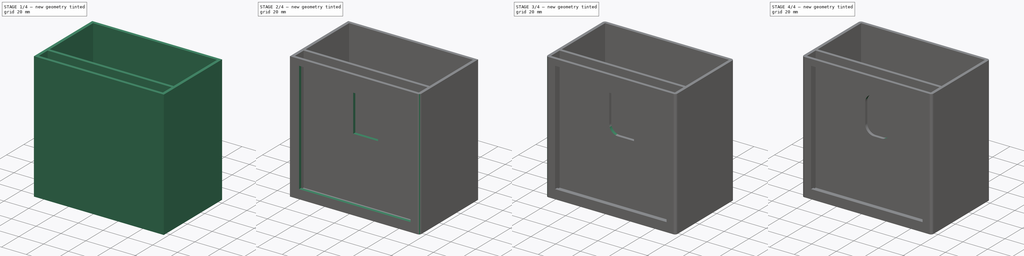
[diagram: build sequence overview — one tinted view per stage of 4, left to right]
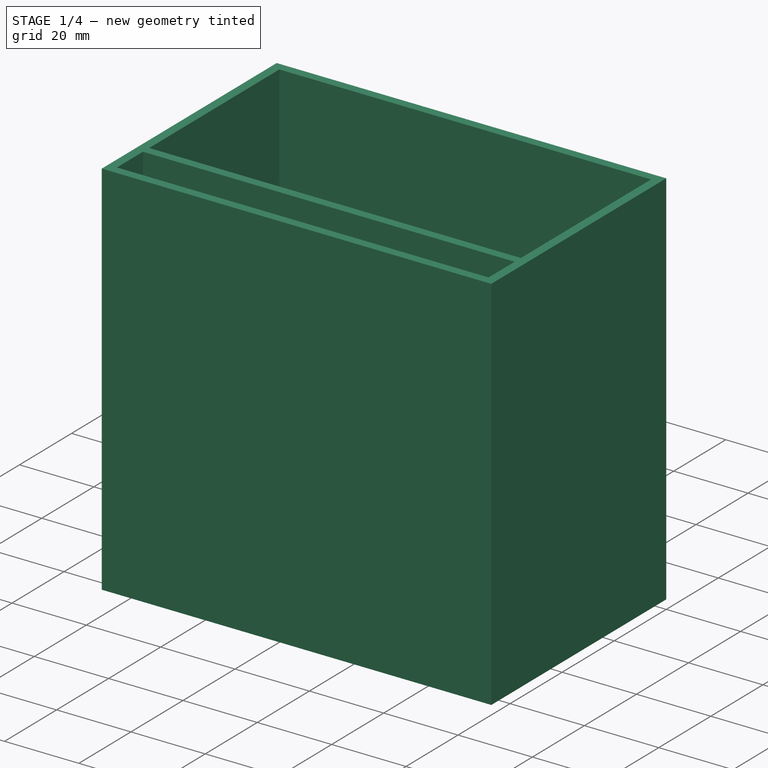
[diagram: stage 1 of 4 — iso view after this stage's code; geometry added in this stage tinted green]
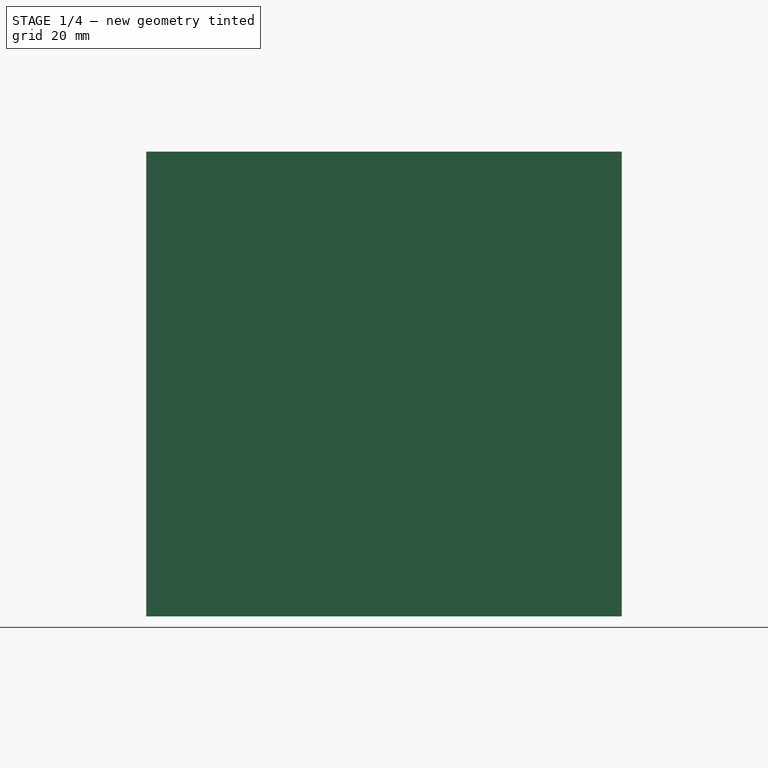
[diagram: stage 1 of 4 — front view after this stage's code; geometry added in this stage tinted green]
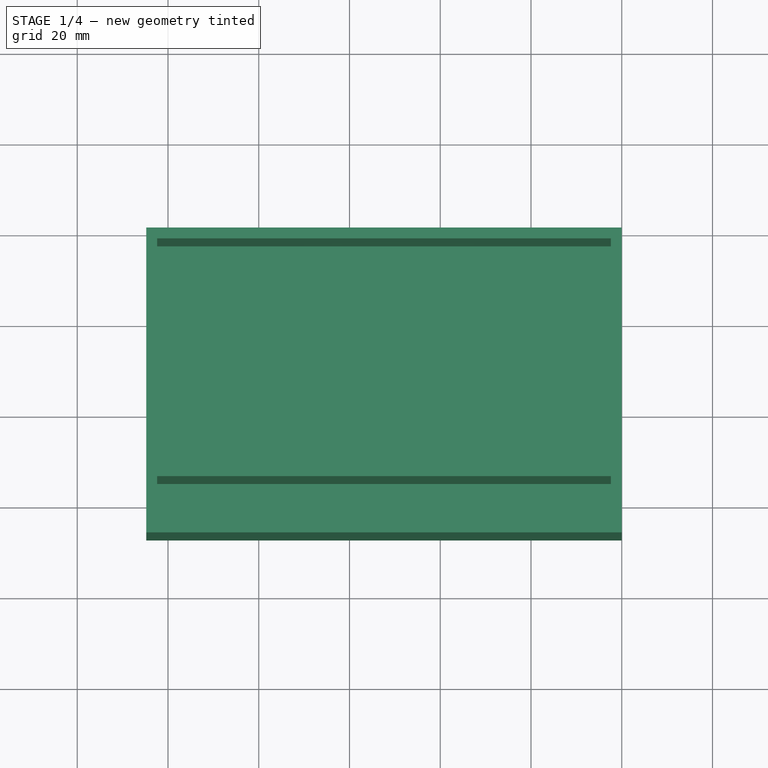
[diagram: stage 1 of 4 — top view after this stage's code; geometry added in this stage tinted green]
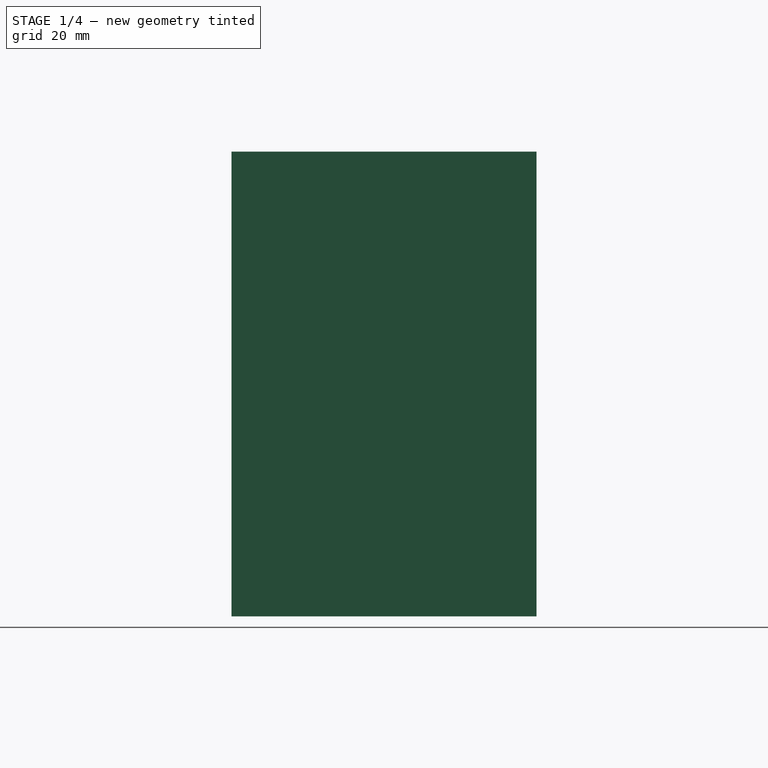
[diagram: stage 1 of 4 — right view after this stage's code; geometry added in this stage tinted green]
FCSTD DOCUMENT  (FreeCAD 0.19R24276 (Git))
Label: PhotoPencilCase
License: All rights reserved
LicenseURL: http://en.wikipedia.org/wiki/All_rights_reserved
objects: PartDesign::Fillet×8, Sketcher::SketchObject×5, PartDesign::Pocket×4, PartDesign::Pad×1, PartDesign::Body×1
note: 32 computed .brp shape members not serialized (recipe doc carries the construction recipe); baked Part::Feature solids carry a one-line shape summary decoded from their .brp

FEATURE [Sketcher::SketchObject] Sketch
  FullyConstrained = true
  MapMode = 5
  Placement = pos=(0,0,0) rot=(1,0,0;1.5708rad)
  Support = -> [XZ_Plane]
  sketch-geometry (4):
    g0: LineSegment StartX=-104.8 StartY=102.4 StartZ=0 EndX=0 EndY=102.4 EndZ=0
    g1: LineSegment StartX=0 StartY=102.4 StartZ=0 EndX=0 EndY=0 EndZ=0
    g2: LineSegment StartX=0 StartY=0 StartZ=0 EndX=-104.8 EndY=0 EndZ=0
    g3: LineSegment StartX=-104.8 StartY=0 StartZ=0 EndX=-104.8 EndY=102.4 EndZ=0
  constraints (11):
    c: Horizontal(g0)
    c: Coincident(g1,g0)
    c: Vertical(g1)
    c: Coincident(g2,g1)
    c: Horizontal(g2)
    c: Coincident(g3,g2)
    c: Coincident(g3,g0)
    c: Vertical(g3)
    c: Distance(g3) = 102.4
    c: Distance(g2) = 104.8
    c: Coincident(g1,g-1)
FEATURE [PartDesign::Pad] Pad
  Direction = (1,1,1)
  Length = 67.2
  Length2 = 100
  Placement = pos=(0,0,0) rot=(1,0,0;1.5708rad)
  Profile = -> Sketch
  Type = 0
FEATURE [Sketcher::SketchObject] Sketch001
  FullyConstrained = true
  MapMode = 5
  Placement = pos=(0,6.82e-14,102.4) rot=(0,0,1;3.14159rad)
  Support = -> [Pad]
  sketch-geometry (4):
    g0: LineSegment StartX=2.4 StartY=2.4 StartZ=0 EndX=102.4 EndY=2.4 EndZ=0
    g1: LineSegment StartX=102.4 StartY=2.4 StartZ=0 EndX=102.4 EndY=52.4 EndZ=0
    g2: LineSegment StartX=102.4 StartY=52.4 StartZ=0 EndX=2.4 EndY=52.4 EndZ=0
    g3: LineSegment StartX=2.4 StartY=52.4 StartZ=0 EndX=2.4 EndY=2.4 EndZ=0
  constraints (12):
    c: Coincident(g0,g1)
    c: Coincident(g1,g2)
    c: Coincident(g2,g3)
    c: Coincident(g3,g0)
    c: Horizontal(g0)
    c: Horizontal(g2)
    c: Vertical(g1)
    c: Vertical(g3)
    c: Distance(g1) = 50
    c: Distance(g2) = 100
    c: DistanceY(g-1,g0) = 2.4
    c: DistanceX(g-1,g0) = 2.4
FEATURE [PartDesign::Pocket] Pocket
  BaseFeature = -> Pad
  Length = 100
  Length2 = 100
  Placement = pos=(0,0,0) rot=(1,0,0;1.5708rad)
  Profile = -> Sketch001
  Type = 0
FEATURE [Sketcher::SketchObject] Sketch002
  FullyConstrained = true
  MapMode = 5
  Placement = pos=(0,1.137e-13,102.4) rot=(0,0,1;3.14159rad)
  Support = -> [Pocket]
  sketch-geometry (4):
    g0: LineSegment StartX=2.4 StartY=64.8 StartZ=0 EndX=102.4 EndY=64.8 EndZ=0
    g1: LineSegment StartX=102.4 StartY=64.8 StartZ=0 EndX=102.4 EndY=54.8 EndZ=0
    g2: LineSegment StartX=102.4 StartY=54.8 StartZ=0 EndX=2.4 EndY=54.8 EndZ=0
    g3: LineSegment StartX=2.4 StartY=54.8 StartZ=0 EndX=2.4 EndY=64.8 EndZ=0
  constraints (12):
    c: Coincident(g0,g1)
    c: Coincident(g1,g2)
    c: Coincident(g2,g3)
    c: Coincident(g3,g0)
    c: Horizontal(g0)
    c: Horizontal(g2)
    c: Vertical(g1)
    c: Vertical(g3)
    c: Distance(g2) = 100
    c: Distance(g3) = 10
    c: DistanceX(g-1,g2) = 2.4
    c: DistanceY(g-1,g2) = 54.8
FEATURE [PartDesign::Pocket] Pocket001
  BaseFeature = -> Pocket
  Length = 100
  Length2 = 100
  Placement = pos=(0,0,0) rot=(1,0,0;1.5708rad)
  Profile = -> Sketch002
  Type = 0
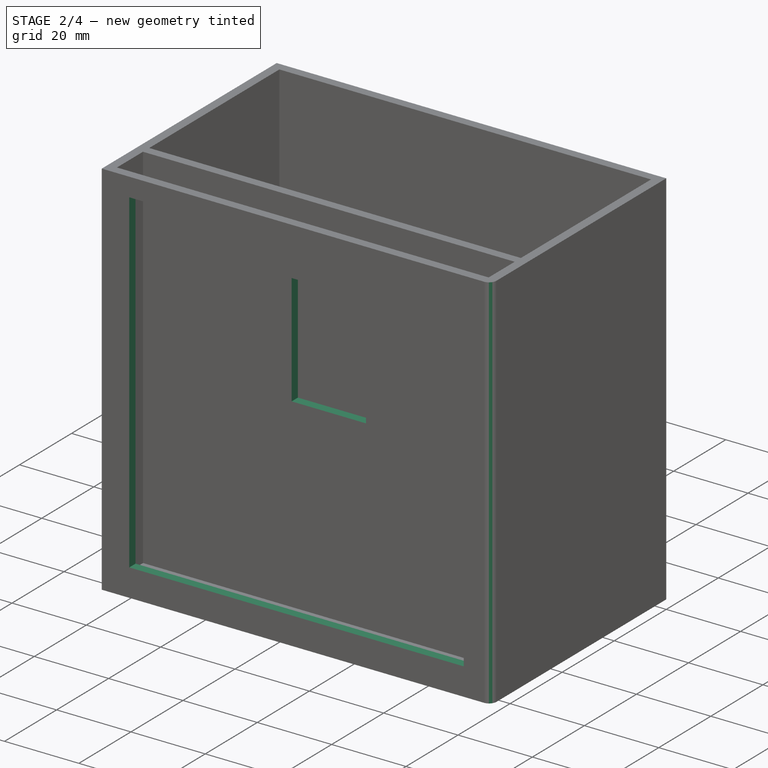
[diagram: stage 2 of 4 — iso view after this stage's code; geometry added in this stage tinted green]
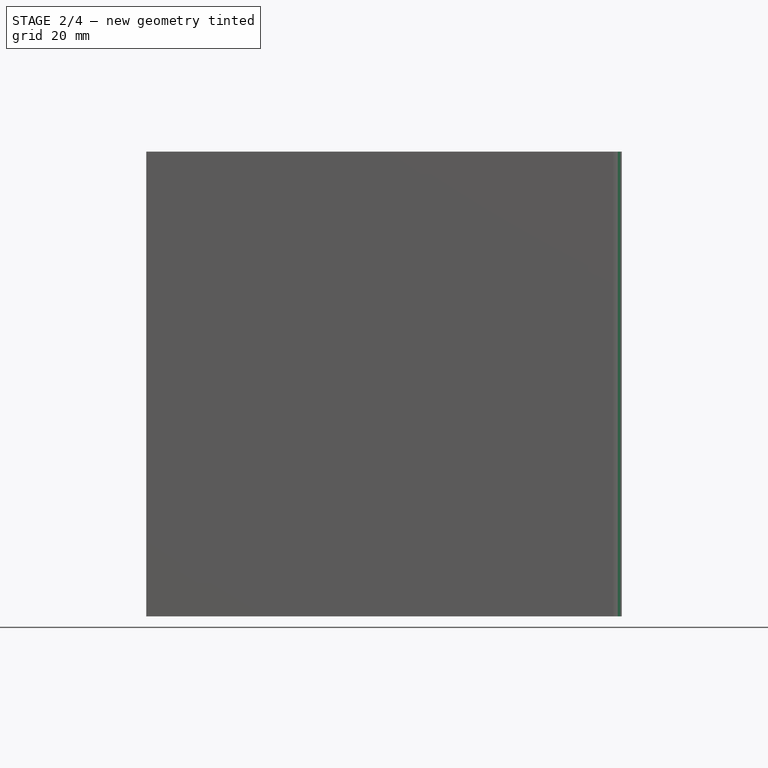
[diagram: stage 2 of 4 — front view after this stage's code; geometry added in this stage tinted green]
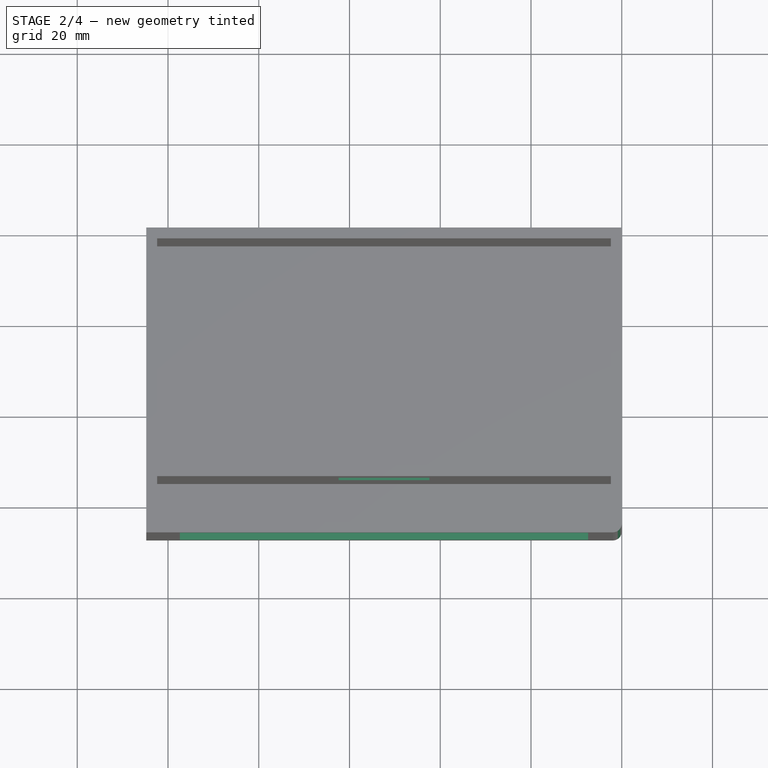
[diagram: stage 2 of 4 — top view after this stage's code; geometry added in this stage tinted green]
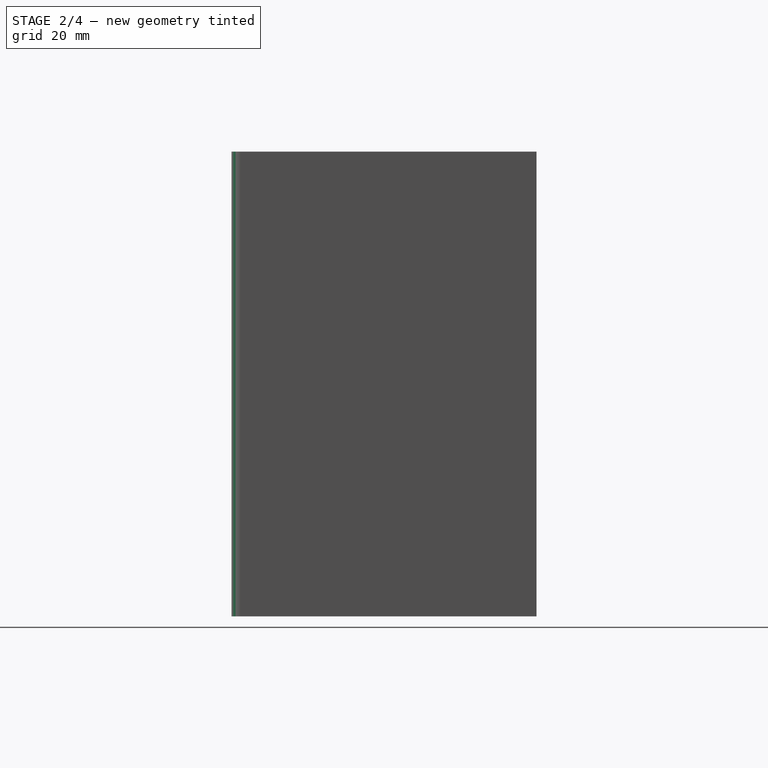
[diagram: stage 2 of 4 — right view after this stage's code; geometry added in this stage tinted green]
FEATURE [Sketcher::SketchObject] Sketch003
  FullyConstrained = true
  MapMode = 5
  Placement = pos=(0,-67.2,1.044e-13) rot=(1,0,0;1.5708rad)
  Support = -> [Pocket001]
  sketch-geometry (4):
    g0: LineSegment StartX=-97.4 StartY=97.4 StartZ=0 EndX=-7.4 EndY=97.4 EndZ=0
    g1: LineSegment StartX=-7.4 StartY=97.4 StartZ=0 EndX=-7.4 EndY=7.4 EndZ=0
    g2: LineSegment StartX=-7.4 StartY=7.4 StartZ=0 EndX=-97.4 EndY=7.4 EndZ=0
    g3: LineSegment StartX=-97.4 StartY=7.4 StartZ=0 EndX=-97.4 EndY=97.4 EndZ=0
  constraints (12):
    c: Coincident(g0,g1)
    c: Coincident(g1,g2)
    c: Coincident(g2,g3)
    c: Coincident(g3,g0)
    c: Horizontal(g0)
    c: Horizontal(g2)
    c: Vertical(g1)
    c: Vertical(g3)
    c: Distance(g0) = 90
    c: Distance(g1) = 90
    c: DistanceX(g1,g-1) = 7.4
    c: DistanceY(g-1,g1) = 7.4
FEATURE [PartDesign::Pocket] Pocket002
  BaseFeature = -> Pocket001
  Length = 3
  Length2 = 100
  Placement = pos=(0,0,0) rot=(1,0,0;1.5708rad)
  Profile = -> Sketch003
  Type = 0
FEATURE [Sketcher::SketchObject] Sketch004
  FullyConstrained = true
  MapMode = 5
  Placement = pos=(0,-54.8,1.095e-13) rot=(1,0,0;1.5708rad)
  Support = -> [Pocket002]
  sketch-geometry (4):
    g0: LineSegment StartX=-62.4 StartY=82.4 StartZ=0 EndX=-42.4 EndY=82.4 EndZ=0
    g1: LineSegment StartX=-42.4 StartY=82.4 StartZ=0 EndX=-42.4 EndY=52.4 EndZ=0
    g2: LineSegment StartX=-42.4 StartY=52.4 StartZ=0 EndX=-62.4 EndY=52.4 EndZ=0
    g3: LineSegment StartX=-62.4 StartY=52.4 StartZ=0 EndX=-62.4 EndY=82.4 EndZ=0
  constraints (12):
    c: Coincident(g0,g1)
    c: Coincident(g1,g2)
    c: Coincident(g2,g3)
    c: Coincident(g3,g0)
    c: Horizontal(g0)
    c: Horizontal(g2)
    c: Vertical(g1)
    c: Vertical(g3)
    c: Distance(g0) = 20
    c: Distance(g1) = 30
    c: DistanceX(g1,g-1) = 42.4
    c: DistanceY(g-1,g1) = 52.4
FEATURE [PartDesign::Pocket] Pocket003
  BaseFeature = -> Pocket002
  Length = 5
  Length2 = 100
  Placement = pos=(0,0,0) rot=(1,0,0;1.5708rad)
  Profile = -> Sketch004
  Type = 0
FEATURE [PartDesign::Fillet] Fillet
  Base = -> Pocket003 [Edge18]
  BaseFeature = -> Pocket003
  Placement = pos=(0,0,0) rot=(1,0,0;1.5708rad)
  Radius = 2
  SupportTransform = false
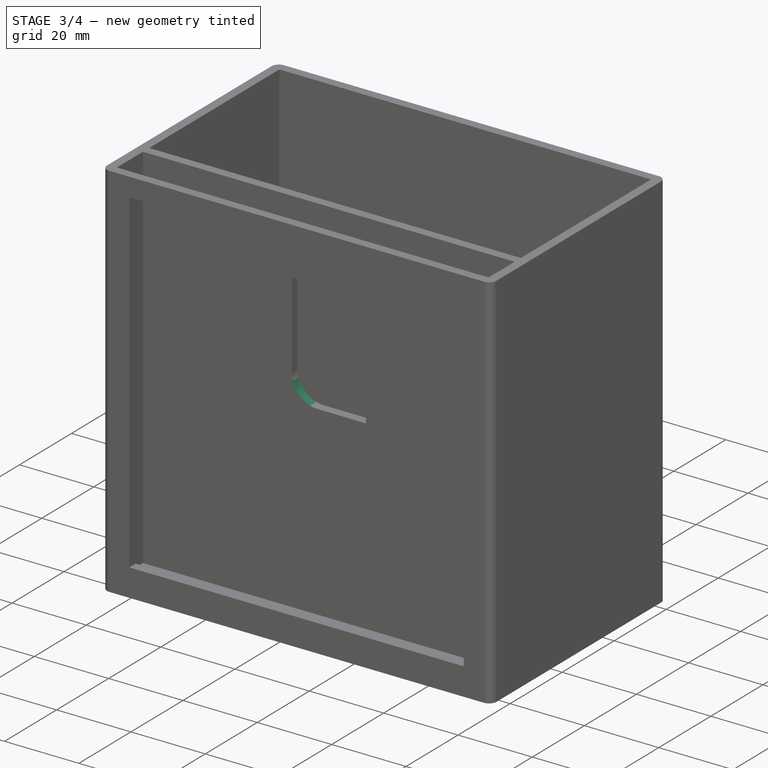
[diagram: stage 3 of 4 — iso view after this stage's code; geometry added in this stage tinted green]
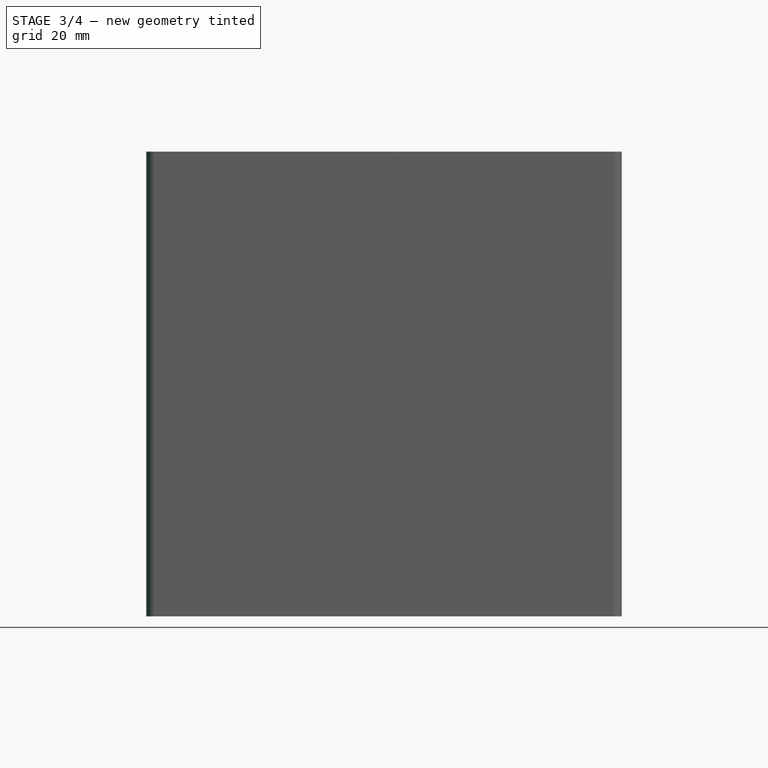
[diagram: stage 3 of 4 — front view after this stage's code; geometry added in this stage tinted green]
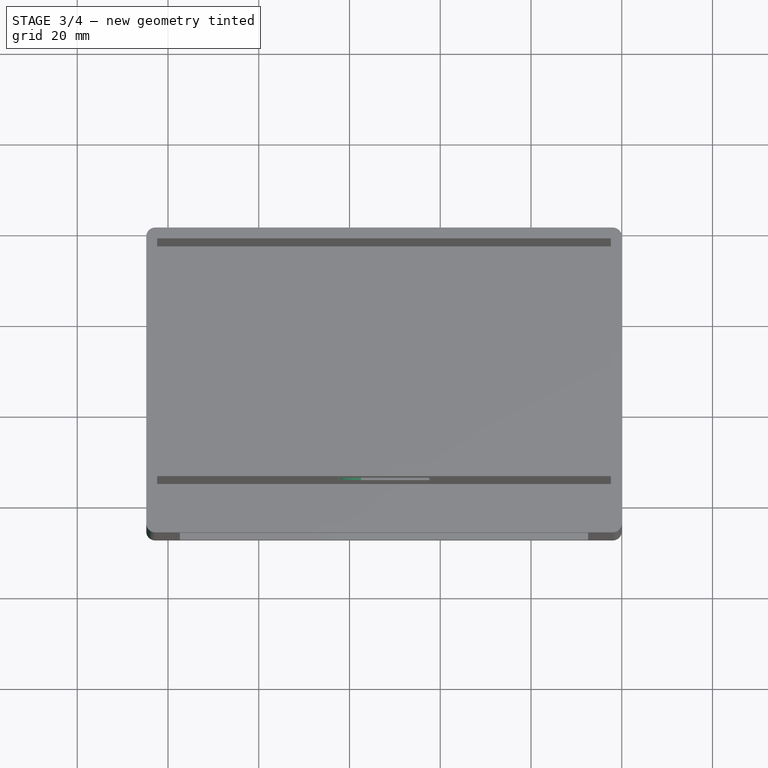
[diagram: stage 3 of 4 — top view after this stage's code; geometry added in this stage tinted green]
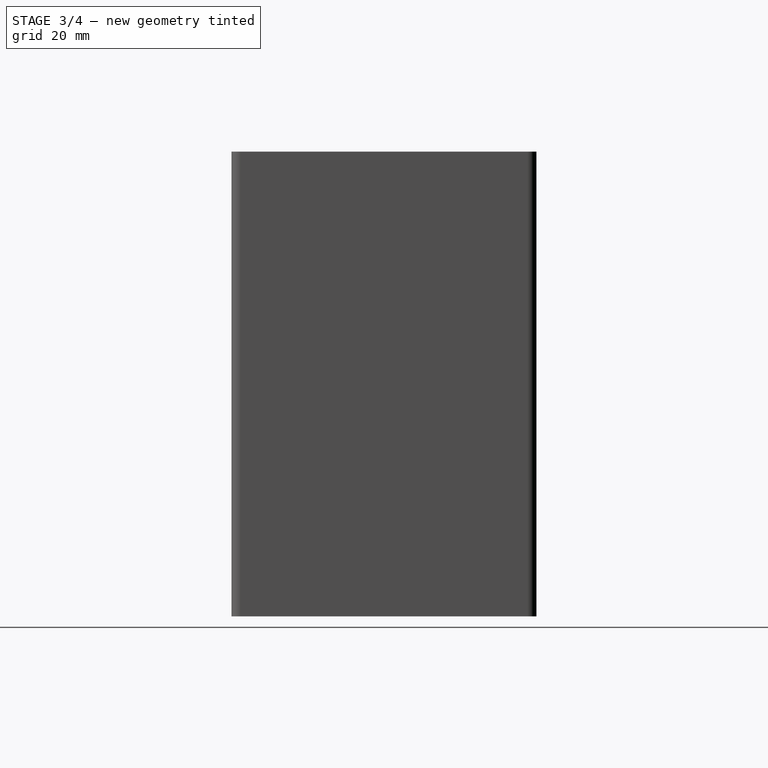
[diagram: stage 3 of 4 — right view after this stage's code; geometry added in this stage tinted green]
FEATURE [PartDesign::Fillet] Fillet001
  Base = -> Fillet [Edge15]
  BaseFeature = -> Fillet
  Placement = pos=(0,0,0) rot=(1,0,0;1.5708rad)
  Radius = 2
  SupportTransform = false
FEATURE [PartDesign::Fillet] Fillet002
  Base = -> Fillet001 [Edge27]
  BaseFeature = -> Fillet001
  Placement = pos=(0,0,0) rot=(1,0,0;1.5708rad)
  Radius = 2
  SupportTransform = false
FEATURE [PartDesign::Fillet] Fillet003
  Base = -> Fillet002 [Edge23]
  BaseFeature = -> Fillet002
  Placement = pos=(0,0,0) rot=(1,0,0;1.5708rad)
  Radius = 2
  SupportTransform = false
FEATURE [PartDesign::Fillet] Fillet004
  Base = -> Fillet003 [Edge70]
  BaseFeature = -> Fillet003
  Placement = pos=(0,0,0) rot=(1,0,0;1.5708rad)
  Radius = 7
  SupportTransform = false
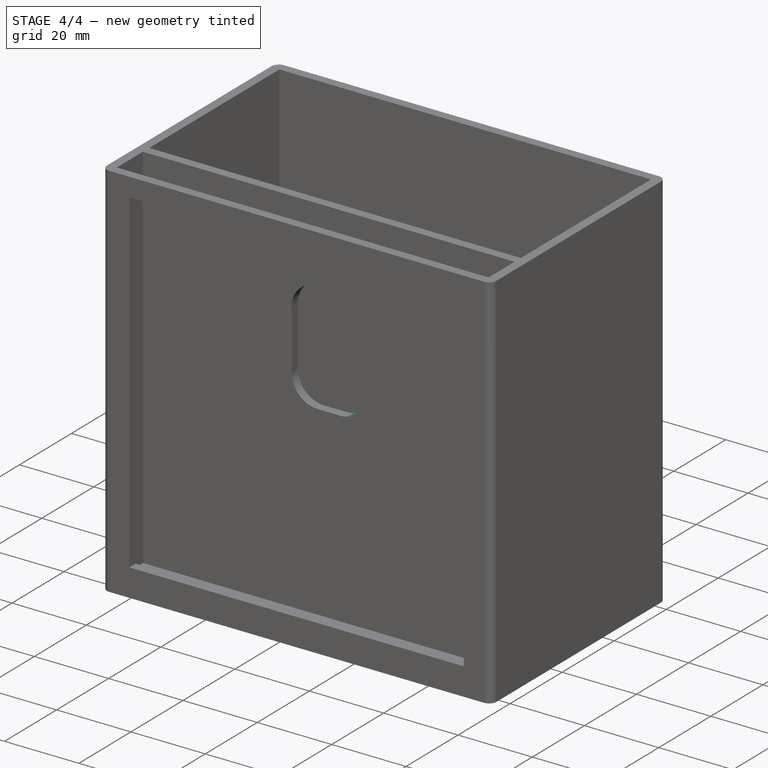
[diagram: stage 4 of 4 — iso view after this stage's code; geometry added in this stage tinted green]
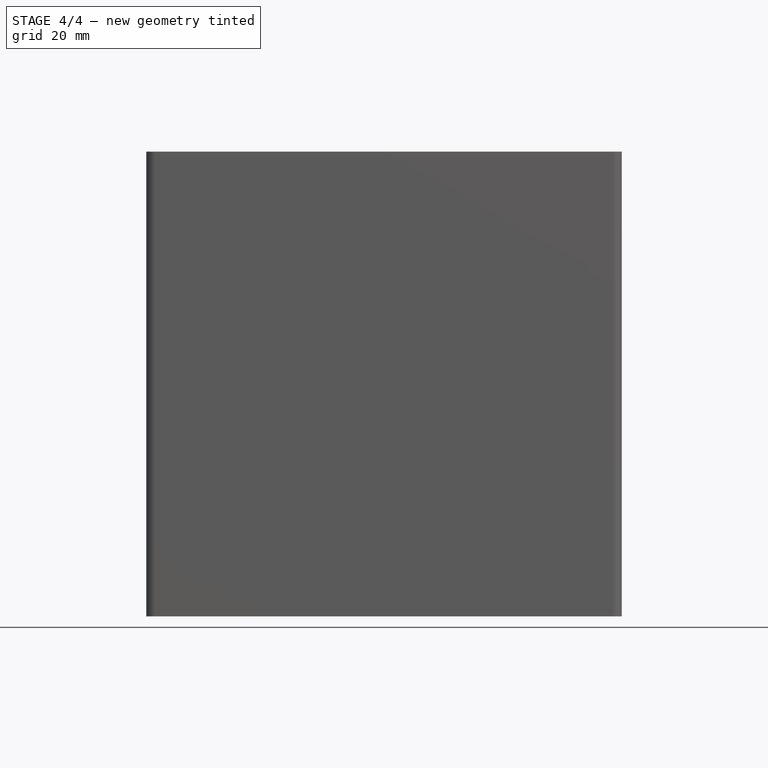
[diagram: stage 4 of 4 — front view after this stage's code; geometry added in this stage tinted green]
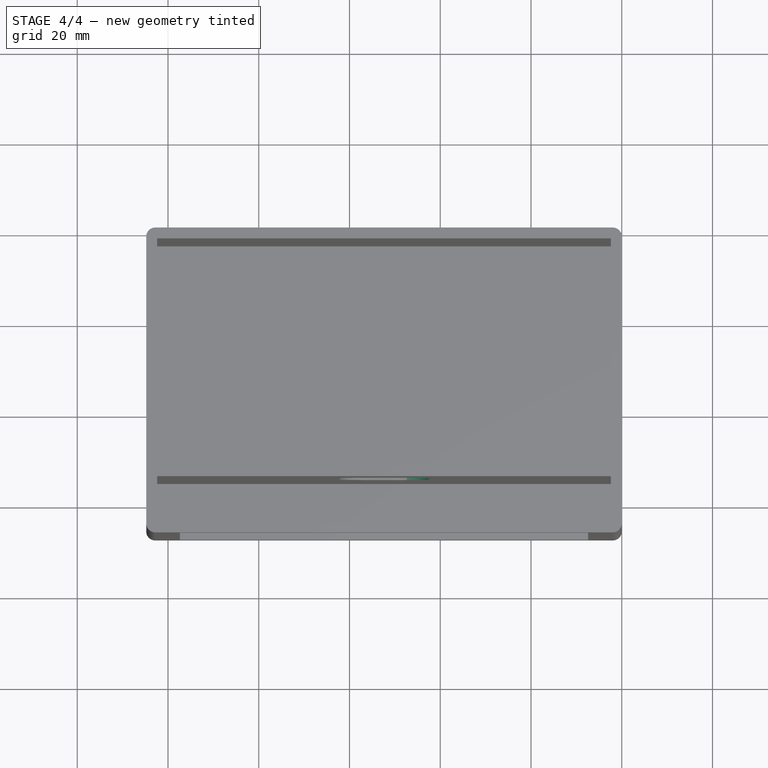
[diagram: stage 4 of 4 — top view after this stage's code; geometry added in this stage tinted green]
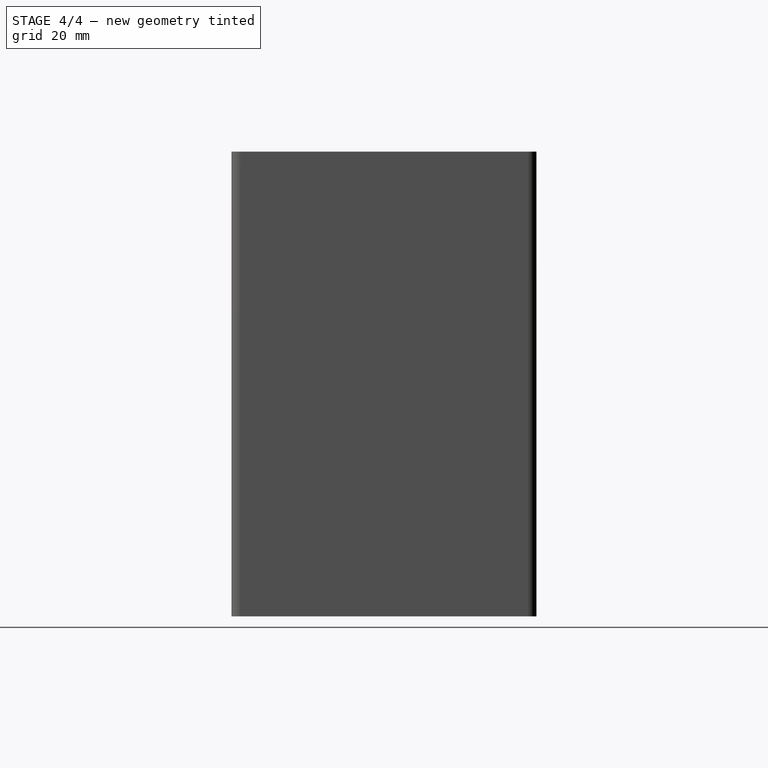
[diagram: stage 4 of 4 — right view after this stage's code; geometry added in this stage tinted green]
FEATURE [PartDesign::Fillet] Fillet005
  Base = -> Fillet004 [Edge17]
  BaseFeature = -> Fillet004
  Placement = pos=(0,0,0) rot=(1,0,0;1.5708rad)
  Radius = 7
  SupportTransform = false
FEATURE [PartDesign::Fillet] Fillet006
  Base = -> Fillet005 [Edge18]
  BaseFeature = -> Fillet005
  Placement = pos=(0,0,0) rot=(1,0,0;1.5708rad)
  Radius = 7
  SupportTransform = false
FEATURE [PartDesign::Fillet] Fillet007
  Base = -> Fillet006 [Edge19]
  BaseFeature = -> Fillet006
  Placement = pos=(0,0,0) rot=(1,0,0;1.5708rad)
  Radius = 7
  SupportTransform = false
FEATURE [PartDesign::Body] Body
  Group = -> [Sketch,Pad,Sketch001,Pocket,Sketch002,Pocket001,Sketch003,Pocket002,Sketch004,Pocket003,Fillet,Fillet001,Fillet002,Fillet003,Fillet004,Fillet005,Fillet006,Fillet007]
  Origin = -> Origin
  Tip = -> Fillet007
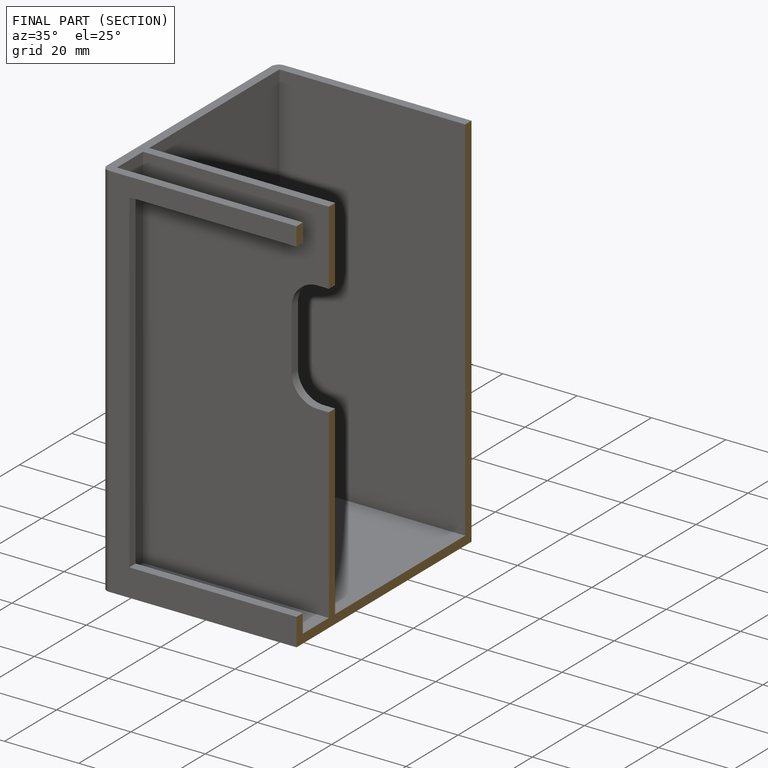
[diagram: finished part — half-section view (interior)]
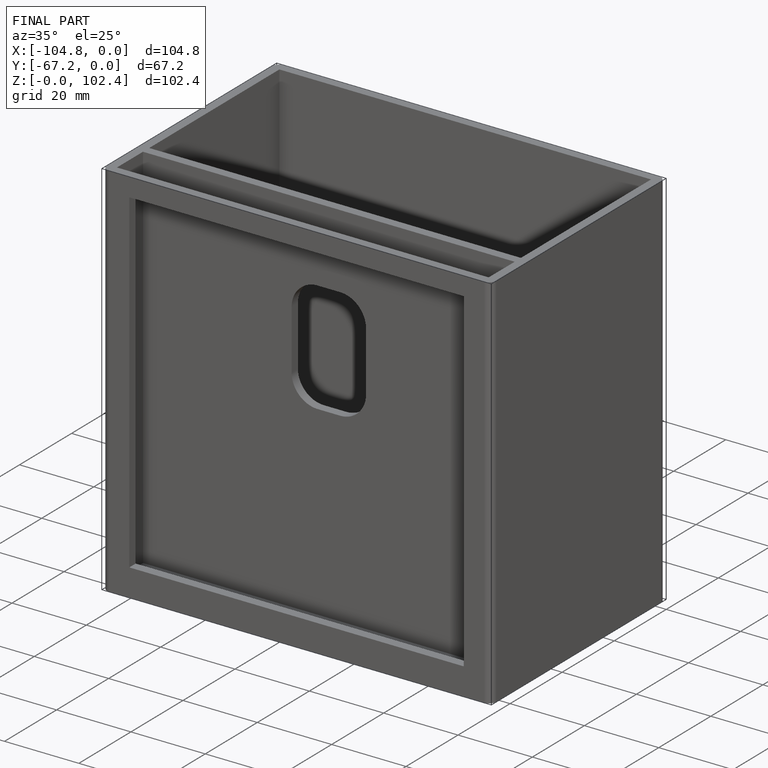
[diagram: finished part — iso view with bounding-box wireframe]
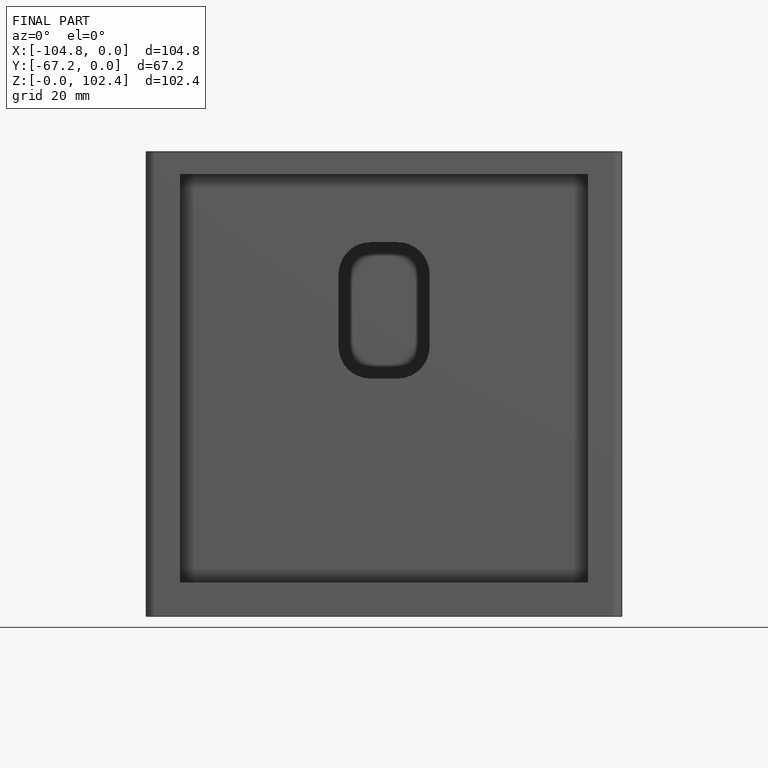
[diagram: finished part — front view with bounding-box wireframe]
